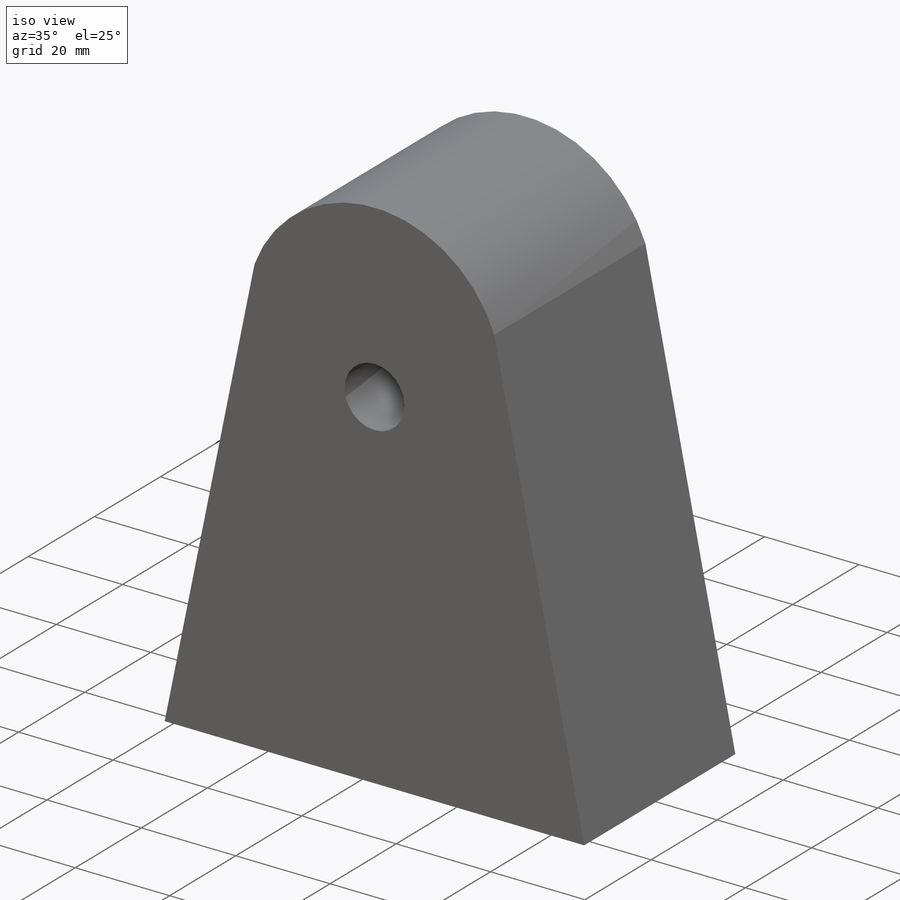
[diagram: iso view]
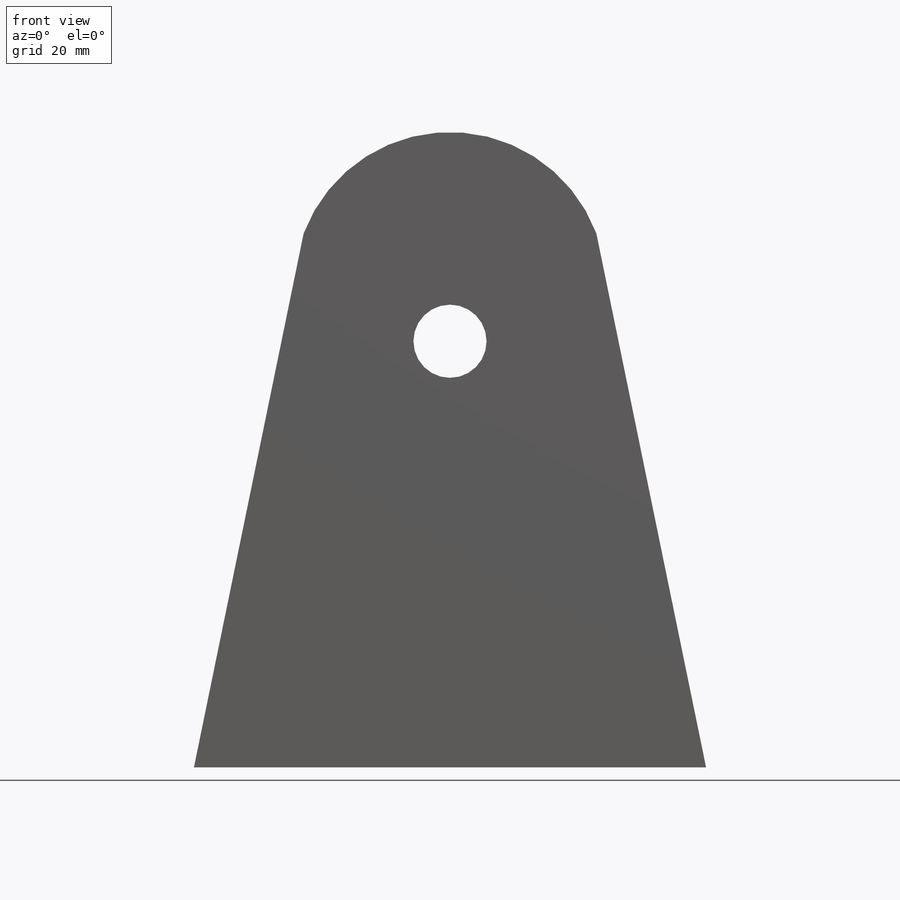
[diagram: front view]
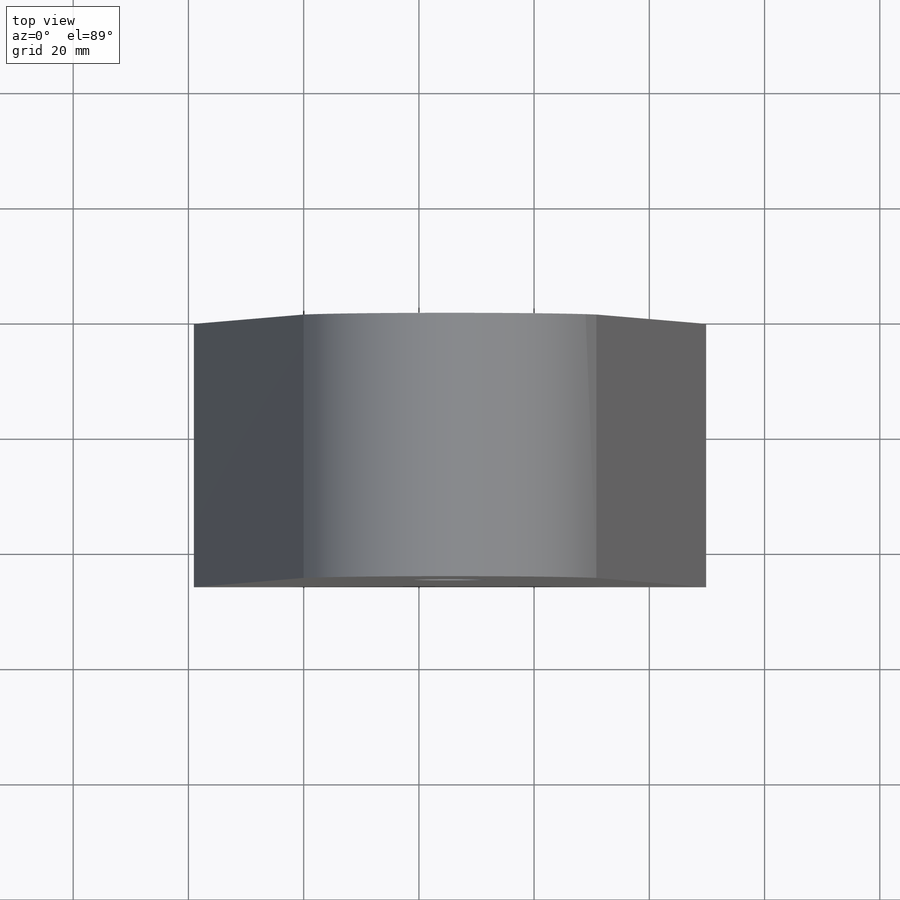
[diagram: top view]
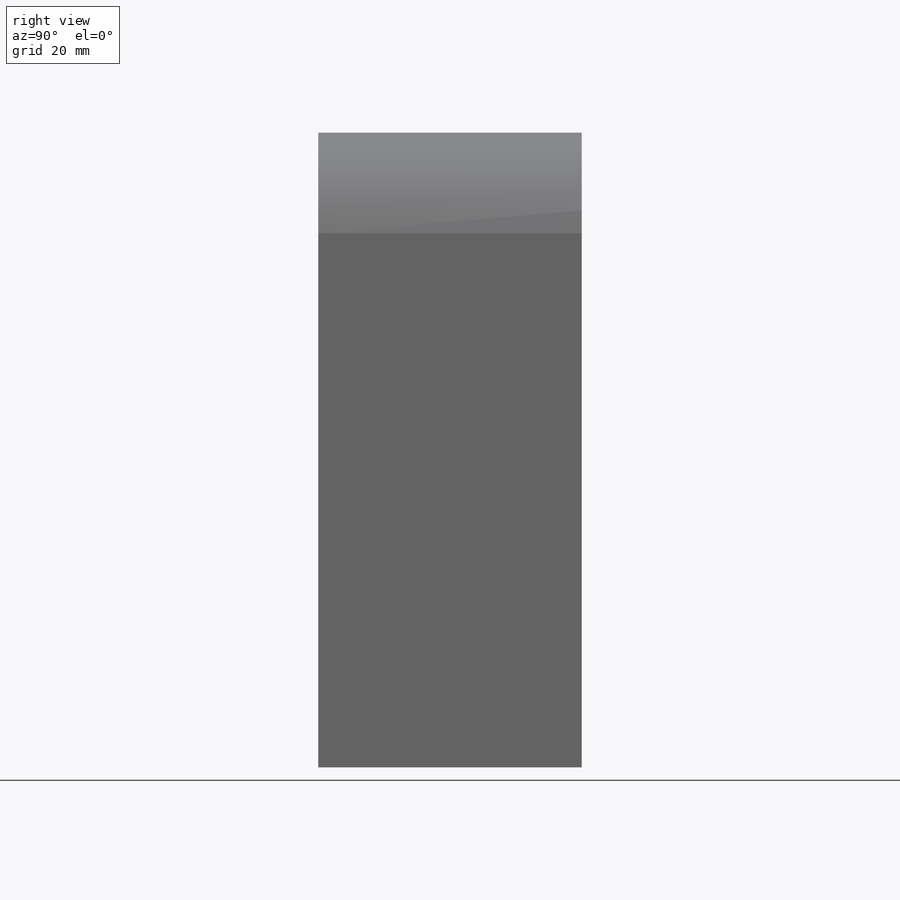
[diagram: right view]
SOLIDWORKS PART (.sldprt)
format: sldprt  version: not decoded by parser v0  size: 381,952 bytes
history: native  units: mm
features: sketch x6, extrude x5, material x1, shell x1, cut_extrude x1 (+13 scaffold rows collapsed)
feature tree (27):
  scaffold x13  (default folders/planes/origin — collapsed)
  material  "Material <not specified>"
  sketch  "Sketch1"  dims[c1.D1=38.1mm c1.D2=~190.175049mm c1.D6=~21.324251mm c2.D1=50.8mm c2.D2=82.55mm c2.D3=82.55mm c3.D2=82.55mm c4.D2=25.0deg c4.D3=92.71mm c4.D4=92.71mm c4.D5=82.55mm c5.D5=65.0deg c5.D6=60.325mm c5.D7=~100.629857mm c6.D6=~137.262766mm c6.D2=~137.262766mm c6.D5=~68.631383mm c7.D2=44.45mm c7.D5=44.45mm]
  extrude  "Boss-Extrude1"  Depth=45.72mm
  shell  "Shell1"  Thickness=2.54mm
  sketch  "Sketch2"  dims[D1=~51.944625mm]
  extrude  "Boss-Extrude2"  Depth=5.08mm
  sketch  "Sketch3"  dims[c1.D1=7.62mm c1.D2=7.62mm c2.D1=30.48mm c2.D2=~61.031046mm]
  sketch  "Sketch4"  dims[D1=7.62mm D2=2.54mm D3=5.08mm D4=7.62mm]
  cut_extrude  "Cut-Extrude1"  Depth=45.72mm
  extrude  "Boss-Extrude3"  Depth=5.08mm
  sketch  "Sketch5"  dims[D1=5.08mm D2=2.54mm]
  extrude  "Boss-Extrude4"  Depth=2.54mm
  sketch  "Sketch6"
  extrude  "Boss-Extrude5"  Depth=1.27mm
decode coverage: 12 of 13 modeling features carry decoded parameters
note: ~ marks probable driven/reference dimensions
note: suppression state not decoded; provenance and decode notes live in map.json
